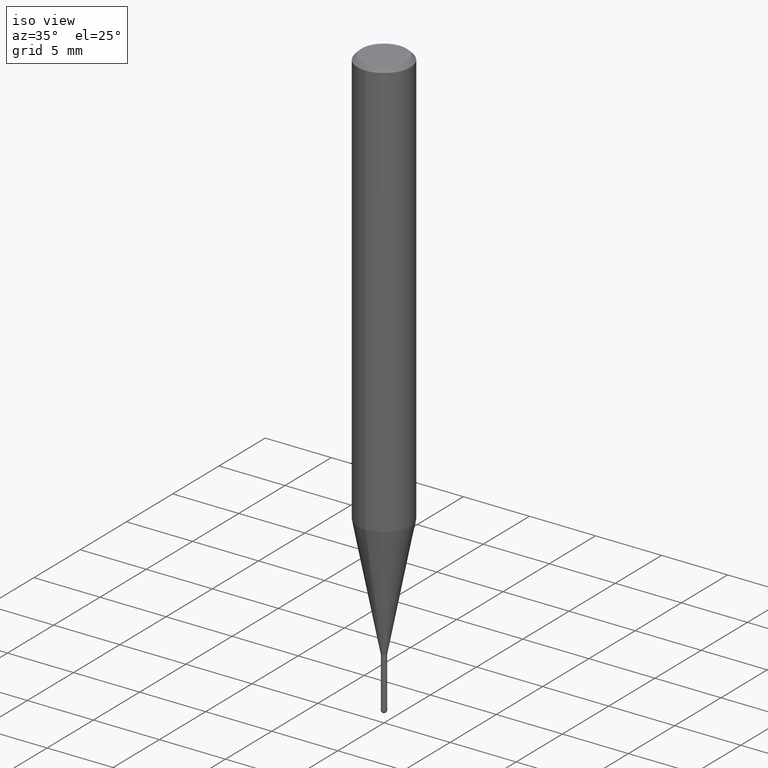
[diagram: clean part render]
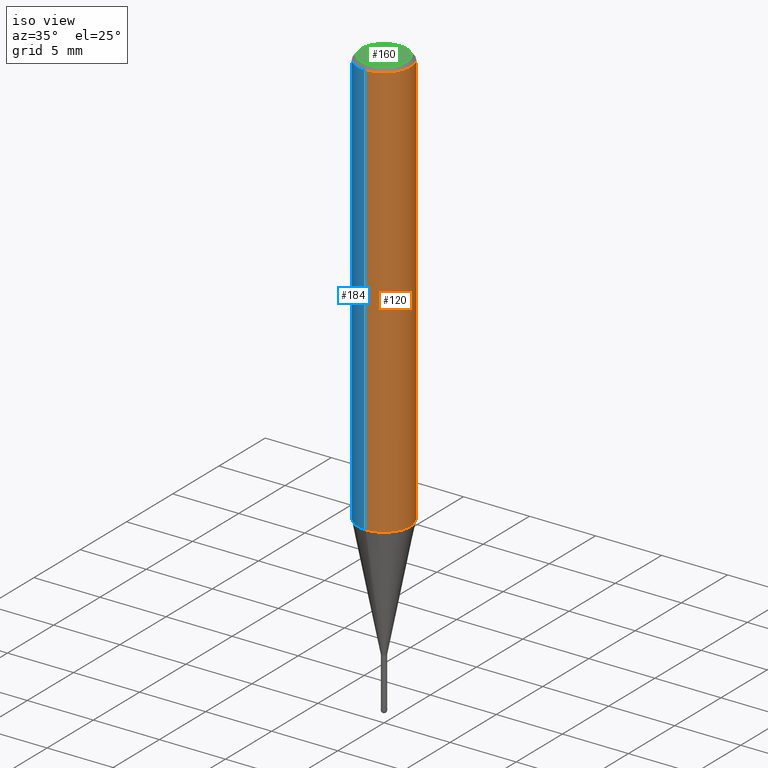
[diagram: same view with three faces highlighted in distinct colors, each labeled with its STEP entity id]
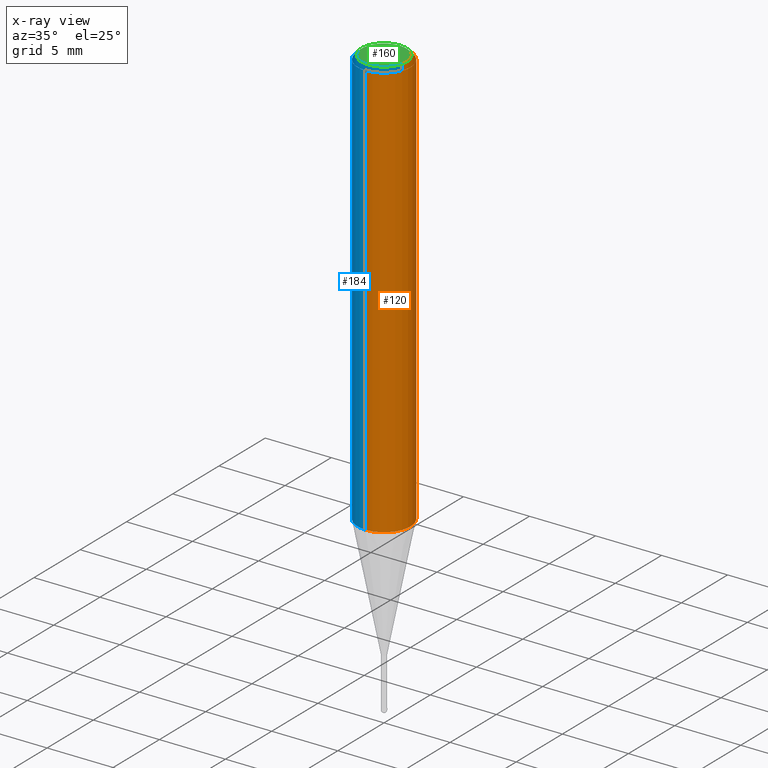
[diagram: x-ray of the same camera — body ghosted, the three highlighted faces saturated]
A machine part, iso view with three faces highlighted in distinct colors.
The next image is the same camera in x-ray (body ghosted, the three faces saturated) — at least one of them is partly hidden behind the body in this view.
Their STEP definitions:

[orange] entity #120 — the highlighted cylindrical surface (edge-blend (fillet) strip) has radius 2 mm, axis along (-0, -0, 1).
#98=EDGE_CURVE('',#122,#142,#240,.T.);
#104=VERTEX_POINT('',#246);
#110=EDGE_CURVE('',#142,#176,#253,.T.);
#120=ADVANCED_FACE('',(#264),#265,.T.);
#122=VERTEX_POINT('',#267);
#142=VERTEX_POINT('',#288);
#176=VERTEX_POINT('',#327);
#182=EDGE_CURVE('',#104,#122,#333,.T.);
#202=EDGE_CURVE('',#104,#176,#357,.T.);
#240=CIRCLE('',#392,2.0);
#246=CARTESIAN_POINT('',(0.0,2.0,-0.300000000000001));
#253=LINE('',#409,#410);
#264=FACE_OUTER_BOUND('',#423,.T.);
#265=CYLINDRICAL_SURFACE('',#424,2.0);
#267=CARTESIAN_POINT('',(0.0,2.0,-31.714));
#288=CARTESIAN_POINT('',(2.44921270764475E-016,-2.0,-31.714));
#327=CARTESIAN_POINT('',(2.44921270764475E-016,-2.0,-0.300000000000001));
#333=LINE('',#508,#509);
#357=CIRCLE('',#539,2.0);
#392=AXIS2_PLACEMENT_3D('',#570,#571,#572);
#409=CARTESIAN_POINT('',(2.44921270764475E-016,-2.0,-16.007));
#410=VECTOR('',#590,1.0);
#423=EDGE_LOOP('',(#601,#602,#603,#604));
#424=AXIS2_PLACEMENT_3D('',#605,#606,#607);
#508=CARTESIAN_POINT('',(-2.44921270764475E-016,2.0,-16.007));
#509=VECTOR('',#672,1.0);
#539=AXIS2_PLACEMENT_3D('',#710,#711,#712);
#570=CARTESIAN_POINT('',(0.0,0.0,-31.714));
#571=DIRECTION('',(0.0,0.0,-1.0));
#572=DIRECTION('',(0.0,1.0,0.0));
#590=DIRECTION('',(-0.0,-0.0,1.0));
#601=ORIENTED_EDGE('',*,*,#182,.F.);
#602=ORIENTED_EDGE('',*,*,#202,.T.);
#603=ORIENTED_EDGE('',*,*,#110,.F.);
#604=ORIENTED_EDGE('',*,*,#98,.F.);
#605=CARTESIAN_POINT('',(0.0,0.0,-16.007));
#606=DIRECTION('',(-0.0,-0.0,1.0));
#607=DIRECTION('',(0.0,1.0,0.0));
#672=DIRECTION('',(0.0,0.0,-1.0));
#710=CARTESIAN_POINT('',(0.0,0.0,-0.300000000000001));
#711=DIRECTION('',(0.0,0.0,-1.0));
#712=DIRECTION('',(0.0,1.0,0.0));

[blue] entity #184 — the highlighted cylindrical surface (edge-blend (fillet) strip) has radius 2 mm, axis along (-0, -0, 1).
#102=EDGE_CURVE('',#176,#104,#244,.T.);
#104=VERTEX_POINT('',#246);
#110=EDGE_CURVE('',#142,#176,#253,.T.);
#122=VERTEX_POINT('',#267);
#142=VERTEX_POINT('',#288);
#176=VERTEX_POINT('',#327);
#182=EDGE_CURVE('',#104,#122,#333,.T.);
#184=ADVANCED_FACE('',(#335),#336,.T.);
#190=EDGE_CURVE('',#142,#122,#344,.T.);
#244=CIRCLE('',#398,2.0);
#246=CARTESIAN_POINT('',(0.0,2.0,-0.300000000000001));
#253=LINE('',#409,#410);
#267=CARTESIAN_POINT('',(0.0,2.0,-31.714));
#288=CARTESIAN_POINT('',(2.44921270764475E-016,-2.0,-31.714));
#327=CARTESIAN_POINT('',(2.44921270764475E-016,-2.0,-0.300000000000001));
#333=LINE('',#508,#509);
#335=FACE_OUTER_BOUND('',#511,.T.);
#336=CYLINDRICAL_SURFACE('',#512,2.0);
#344=CIRCLE('',#521,2.0);
#398=AXIS2_PLACEMENT_3D('',#576,#577,#578);
#409=CARTESIAN_POINT('',(2.44921270764475E-016,-2.0,-16.007));
#410=VECTOR('',#590,1.0);
#508=CARTESIAN_POINT('',(-2.44921270764475E-016,2.0,-16.007));
#509=VECTOR('',#672,1.0);
#511=EDGE_LOOP('',(#674,#675,#676,#677));
#512=AXIS2_PLACEMENT_3D('',#678,#679,#680);
#521=AXIS2_PLACEMENT_3D('',#697,#698,#699);
#576=CARTESIAN_POINT('',(0.0,0.0,-0.300000000000001));
#577=DIRECTION('',(0.0,0.0,-1.0));
#578=DIRECTION('',(0.0,1.0,0.0));
#590=DIRECTION('',(-0.0,-0.0,1.0));
#672=DIRECTION('',(0.0,0.0,-1.0));
#674=ORIENTED_EDGE('',*,*,#182,.T.);
#675=ORIENTED_EDGE('',*,*,#190,.F.);
#676=ORIENTED_EDGE('',*,*,#110,.T.);
#677=ORIENTED_EDGE('',*,*,#102,.T.);
#678=CARTESIAN_POINT('',(0.0,0.0,-16.007));
#679=DIRECTION('',(-0.0,-0.0,1.0));
#680=DIRECTION('',(0.0,1.0,0.0));
#697=CARTESIAN_POINT('',(0.0,0.0,-31.714));
#698=DIRECTION('',(0.0,0.0,-1.0));
#699=DIRECTION('',(0.0,1.0,0.0));

[green] entity #160 — the highlighted planar face has unit normal (-0, 0, 1).
#100=EDGE_CURVE('',#198,#116,#242,.T.);
#116=VERTEX_POINT('',#260);
#160=ADVANCED_FACE('',(#308),#309,.T.);
#198=VERTEX_POINT('',#353);
#208=EDGE_CURVE('',#116,#198,#364,.T.);
#242=CIRCLE('',#395,1.7);
#260=CARTESIAN_POINT('',(2.08183080149804E-016,-1.7,0.0));
#308=FACE_OUTER_BOUND('',#479,.T.);
#309=PLANE('',#480);
#353=CARTESIAN_POINT('',(0.0,1.7,0.0));
#364=CIRCLE('',#548,1.7);
#395=AXIS2_PLACEMENT_3D('',#573,#574,#575);
#479=EDGE_LOOP('',(#651,#652));
#480=AXIS2_PLACEMENT_3D('',#653,#654,#655);
#548=AXIS2_PLACEMENT_3D('',#722,#723,#724);
#573=CARTESIAN_POINT('',(0.0,0.0,0.0));
#574=DIRECTION('',(0.0,0.0,-1.0));
#575=DIRECTION('',(0.0,1.0,0.0));
#651=ORIENTED_EDGE('',*,*,#100,.F.);
#652=ORIENTED_EDGE('',*,*,#208,.F.);
#653=CARTESIAN_POINT('',(0.0,0.85,0.0));
#654=DIRECTION('',(-0.0,0.0,1.0));
#655=DIRECTION('',(0.0,-1.0,0.0));
#722=CARTESIAN_POINT('',(0.0,0.0,0.0));
#723=DIRECTION('',(0.0,0.0,-1.0));
#724=DIRECTION('',(0.0,1.0,0.0));